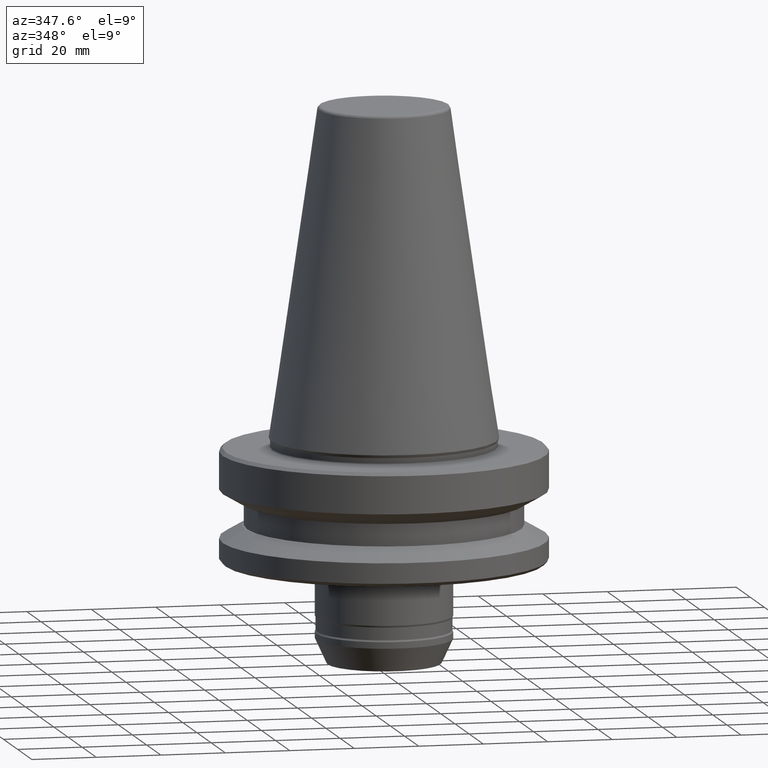
[diagram: clean part render]
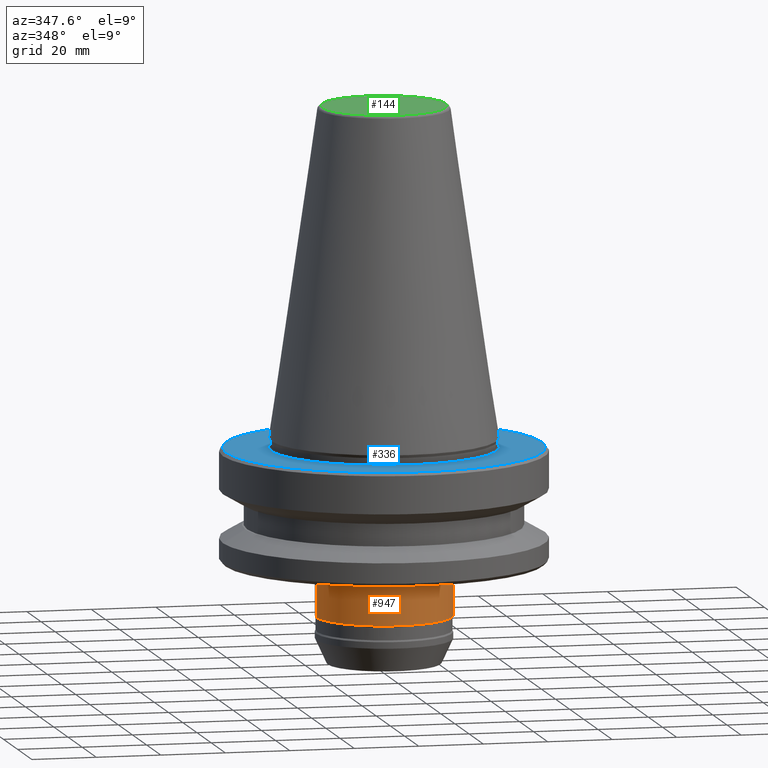
[diagram: same view with three faces highlighted in distinct colors, each labeled with its STEP entity id]
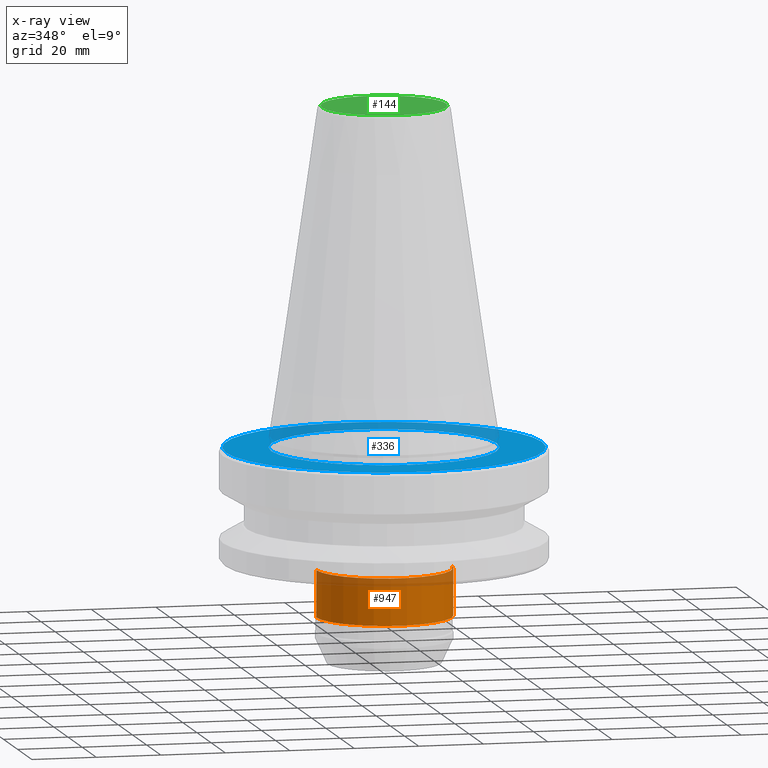
[diagram: x-ray of the same camera — body ghosted, the three highlighted faces saturated]
A machine part, auxiliary view with three faces highlighted in distinct colors.
The next image is the same camera in x-ray (body ghosted, the three faces saturated) — at least one of them is partly hidden behind the body in this view.
Their STEP definitions:

[orange] entity #947 — the highlighted cylindrical surface (partial cylindrical patch) has radius 21 mm, axis along (-0, -0, 1).
#28 = CARTESIAN_POINT ( 'NONE',  ( -20.99999999998014700, 2.571758278207010400E-015, -54.50422577826108700 ) ) ;
#149 = DIRECTION ( 'NONE',  ( 1.000000000000000000, 0.0000000000000000000, 0.0000000000000000000 ) ) ;
#162 = VECTOR ( 'NONE', #245, 1000.000000000000000 ) ;
#166 = LINE ( 'NONE', #641, #162 ) ;
#176 = CARTESIAN_POINT ( 'NONE',  ( 0.0000000000000000000, 0.0000000000000000000, -54.50422577826108700 ) ) ;
#209 = CYLINDRICAL_SURFACE ( 'NONE', #529, 20.99999999998025800 ) ;
#222 = FACE_OUTER_BOUND ( 'NONE', #663, .T. ) ;
#245 = DIRECTION ( 'NONE',  ( -0.0000000000000000000, -0.0000000000000000000, 1.000000000000000000 ) ) ;
#260 = CIRCLE ( 'NONE', #360, 20.99999999998014700 ) ;
#263 = DIRECTION ( 'NONE',  ( 1.000000000000000000, 0.0000000000000000000, 0.0000000000000000000 ) ) ;
#282 = CARTESIAN_POINT ( 'NONE',  ( -20.99999999998036800, 2.571758278207038000E-015, -40.00000000000181200 ) ) ;
#285 = VECTOR ( 'NONE', #1049, 1000.000000000000000 ) ;
#289 = CIRCLE ( 'NONE', #1170, 20.99999999998036800 ) ;
#291 = LINE ( 'NONE', #373, #285 ) ;
#346 = DIRECTION ( 'NONE',  ( -0.0000000000000000000, -0.0000000000000000000, 1.000000000000000000 ) ) ;
#360 = AXIS2_PLACEMENT_3D ( 'NONE', #176, #854, #263 ) ;
#373 = CARTESIAN_POINT ( 'NONE',  ( 20.99999999998025800, 0.0000000000000000000, 132.3443118565871000 ) ) ;
#529 = AXIS2_PLACEMENT_3D ( 'NONE', #721, #1161, #149 ) ;
#582 = CARTESIAN_POINT ( 'NONE',  ( 20.99999999998014700, 0.0000000000000000000, -54.50422577826108700 ) ) ;
#641 = CARTESIAN_POINT ( 'NONE',  ( -20.99999999998025800, 2.571758278207024200E-015, 132.3443118565871000 ) ) ;
#658 = CARTESIAN_POINT ( 'NONE',  ( 20.99999999998036800, 0.0000000000000000000, -40.00000000000181200 ) ) ;
#659 = VERTEX_POINT ( 'NONE', #282 ) ;
#663 = EDGE_LOOP ( 'NONE', ( #809, #814, #815, #823 ) ) ;
#721 = CARTESIAN_POINT ( 'NONE',  ( 0.0000000000000000000, 0.0000000000000000000, 132.3443118565871000 ) ) ;
#760 = EDGE_CURVE ( 'NONE', #776, #807, #291, .T. ) ;
#761 = EDGE_CURVE ( 'NONE', #659, #807, #289, .T. ) ;
#776 = VERTEX_POINT ( 'NONE', #582 ) ;
#807 = VERTEX_POINT ( 'NONE', #658 ) ;
#809 = ORIENTED_EDGE ( 'NONE', *, *, #1101, .F. ) ;
#814 = ORIENTED_EDGE ( 'NONE', *, *, #835, .T. ) ;
#815 = ORIENTED_EDGE ( 'NONE', *, *, #760, .T. ) ;
#823 = ORIENTED_EDGE ( 'NONE', *, *, #761, .F. ) ;
#835 = EDGE_CURVE ( 'NONE', #876, #776, #260, .T. ) ;
#854 = DIRECTION ( 'NONE',  ( -0.0000000000000000000, -0.0000000000000000000, 1.000000000000000000 ) ) ;
#876 = VERTEX_POINT ( 'NONE', #28 ) ;
#947 = ADVANCED_FACE ( 'NONE', ( #222 ), #209, .T. ) ;
#1027 = DIRECTION ( 'NONE',  ( 1.000000000000000000, 0.0000000000000000000, 0.0000000000000000000 ) ) ;
#1049 = DIRECTION ( 'NONE',  ( -0.0000000000000000000, -0.0000000000000000000, 1.000000000000000000 ) ) ;
#1101 = EDGE_CURVE ( 'NONE', #876, #659, #166, .T. ) ;
#1161 = DIRECTION ( 'NONE',  ( -0.0000000000000000000, -0.0000000000000000000, 1.000000000000000000 ) ) ;
#1170 = AXIS2_PLACEMENT_3D ( 'NONE', #1199, #346, #1027 ) ;
#1199 = CARTESIAN_POINT ( 'NONE',  ( 0.0000000000000000000, 0.0000000000000000000, -40.00000000000181200 ) ) ;

[blue] entity #336 — the highlighted planar face has unit normal (0, 0, -1).
#4 = DIRECTION ( 'NONE',  ( -0.0000000000000000000, -0.0000000000000000000, 1.000000000000000000 ) ) ;
#63 = AXIS2_PLACEMENT_3D ( 'NONE', #667, #98, #762 ) ;
#98 = DIRECTION ( 'NONE',  ( -0.0000000000000000000, -0.0000000000000000000, 1.000000000000000000 ) ) ;
#118 = DIRECTION ( 'NONE',  ( -1.000000000000000000, 0.0000000000000000000, -0.0000000000000000000 ) ) ;
#228 = DIRECTION ( 'NONE',  ( -0.0000000000000000000, -0.0000000000000000000, 1.000000000000000000 ) ) ;
#230 = CIRCLE ( 'NONE', #612, 48.99999999999970900 ) ;
#265 = CARTESIAN_POINT ( 'NONE',  ( 0.0000000000000000000, 0.0000000000000000000, -3.000000000001223900 ) ) ;
#302 = CIRCLE ( 'NONE', #63, 48.99999999999970900 ) ;
#316 = CIRCLE ( 'NONE', #1190, 34.99999999999970200 ) ;
#321 = CIRCLE ( 'NONE', #1106, 34.99999999999970200 ) ;
#336 = ADVANCED_FACE ( 'NONE', ( #411, #419 ), #1142, .F. ) ;
#365 = DIRECTION ( 'NONE',  ( 1.000000000000000000, 0.0000000000000000000, 0.0000000000000000000 ) ) ;
#411 = FACE_BOUND ( 'NONE', #978, .T. ) ;
#419 = FACE_OUTER_BOUND ( 'NONE', #1072, .T. ) ;
#586 = CARTESIAN_POINT ( 'NONE',  ( 0.0000000000000000000, 0.0000000000000000000, -3.000000000001223900 ) ) ;
#593 = CARTESIAN_POINT ( 'NONE',  ( 0.0000000000000000000, 48.99999999999970900, -3.000000000001223900 ) ) ;
#612 = AXIS2_PLACEMENT_3D ( 'NONE', #816, #228, #911 ) ;
#628 = CARTESIAN_POINT ( 'NONE',  ( 34.99999999999992200, 0.0000000000000000000, -3.000000000001446000 ) ) ;
#642 = VERTEX_POINT ( 'NONE', #668 ) ;
#667 = CARTESIAN_POINT ( 'NONE',  ( 0.0000000000000000000, 0.0000000000000000000, -3.000000000001223900 ) ) ;
#668 = CARTESIAN_POINT ( 'NONE',  ( -48.99999999999970900, 0.0000000000000000000, -3.000000000001223900 ) ) ;
#672 = EDGE_CURVE ( 'NONE', #1124, #969, #316, .T. ) ;
#680 = DIRECTION ( 'NONE',  ( 1.000000000000000000, 0.0000000000000000000, 0.0000000000000000000 ) ) ;
#690 = DIRECTION ( 'NONE',  ( 0.0000000000000000000, 0.0000000000000000000, -1.000000000000000000 ) ) ;
#699 = EDGE_CURVE ( 'NONE', #969, #1124, #321, .T. ) ;
#742 = EDGE_CURVE ( 'NONE', #642, #865, #302, .T. ) ;
#762 = DIRECTION ( 'NONE',  ( 1.000000000000000000, 0.0000000000000000000, 0.0000000000000000000 ) ) ;
#816 = CARTESIAN_POINT ( 'NONE',  ( 0.0000000000000000000, 0.0000000000000000000, -3.000000000001223900 ) ) ;
#865 = VERTEX_POINT ( 'NONE', #945 ) ;
#911 = DIRECTION ( 'NONE',  ( 1.000000000000000000, 0.0000000000000000000, 0.0000000000000000000 ) ) ;
#914 = EDGE_CURVE ( 'NONE', #865, #642, #230, .T. ) ;
#931 = CARTESIAN_POINT ( 'NONE',  ( -34.99999999999992200, 4.286263797015727000E-015, -3.000000000001446000 ) ) ;
#945 = CARTESIAN_POINT ( 'NONE',  ( 48.99999999999970900, 6.062001655779369300E-015, -3.000000000001223900 ) ) ;
#954 = DIRECTION ( 'NONE',  ( -0.0000000000000000000, -0.0000000000000000000, 1.000000000000000000 ) ) ;
#969 = VERTEX_POINT ( 'NONE', #628 ) ;
#978 = EDGE_LOOP ( 'NONE', ( #1130, #1188 ) ) ;
#1006 = AXIS2_PLACEMENT_3D ( 'NONE', #593, #690, #118 ) ;
#1050 = ORIENTED_EDGE ( 'NONE', *, *, #914, .T. ) ;
#1072 = EDGE_LOOP ( 'NONE', ( #1200, #1050 ) ) ;
#1106 = AXIS2_PLACEMENT_3D ( 'NONE', #265, #954, #365 ) ;
#1124 = VERTEX_POINT ( 'NONE', #931 ) ;
#1130 = ORIENTED_EDGE ( 'NONE', *, *, #699, .F. ) ;
#1142 = PLANE ( 'NONE',  #1006 ) ;
#1188 = ORIENTED_EDGE ( 'NONE', *, *, #672, .F. ) ;
#1190 = AXIS2_PLACEMENT_3D ( 'NONE', #586, #4, #680 ) ;
#1200 = ORIENTED_EDGE ( 'NONE', *, *, #742, .T. ) ;

[green] entity #144 — the highlighted planar face has unit normal (0, 0, -1).
#1 = AXIS2_PLACEMENT_3D ( 'NONE', #676, #103, #769 ) ;
#79 = PLANE ( 'NONE',  #482 ) ;
#103 = DIRECTION ( 'NONE',  ( -0.0000000000000000000, -0.0000000000000000000, 1.000000000000000000 ) ) ;
#144 = ADVANCED_FACE ( 'NONE', ( #487 ), #79, .F. ) ;
#219 = VERTEX_POINT ( 'NONE', #1070 ) ;
#256 = DIRECTION ( 'NONE',  ( -1.000000000000000000, 0.0000000000000000000, -0.0000000000000000000 ) ) ;
#322 = CIRCLE ( 'NONE', #1, 19.21428366486988200 ) ;
#355 = CIRCLE ( 'NONE', #972, 19.21428366486988200 ) ;
#482 = AXIS2_PLACEMENT_3D ( 'NONE', #559, #847, #256 ) ;
#487 = FACE_OUTER_BOUND ( 'NONE', #1104, .T. ) ;
#537 = CARTESIAN_POINT ( 'NONE',  ( -19.21428366486988200, 2.413662506824936800E-015, 101.7999999999988700 ) ) ;
#559 = CARTESIAN_POINT ( 'NONE',  ( 0.0000000000000000000, 19.21428366486988200, 101.7999999999989500 ) ) ;
#581 = DIRECTION ( 'NONE',  ( -0.0000000000000000000, -0.0000000000000000000, 1.000000000000000000 ) ) ;
#602 = ORIENTED_EDGE ( 'NONE', *, *, #626, .T. ) ;
#626 = EDGE_CURVE ( 'NONE', #219, #979, #355, .T. ) ;
#640 = ORIENTED_EDGE ( 'NONE', *, *, #655, .T. ) ;
#655 = EDGE_CURVE ( 'NONE', #979, #219, #322, .T. ) ;
#676 = CARTESIAN_POINT ( 'NONE',  ( 0.0000000000000000000, 0.0000000000000000000, 101.7999999999988700 ) ) ;
#769 = DIRECTION ( 'NONE',  ( 1.000000000000000000, 0.0000000000000000000, 0.0000000000000000000 ) ) ;
#847 = DIRECTION ( 'NONE',  ( 0.0000000000000000000, 0.0000000000000000000, -1.000000000000000000 ) ) ;
#972 = AXIS2_PLACEMENT_3D ( 'NONE', #1127, #581, #1198 ) ;
#979 = VERTEX_POINT ( 'NONE', #537 ) ;
#1070 = CARTESIAN_POINT ( 'NONE',  ( 19.21428366486988200, 0.0000000000000000000, 101.7999999999988700 ) ) ;
#1104 = EDGE_LOOP ( 'NONE', ( #602, #640 ) ) ;
#1127 = CARTESIAN_POINT ( 'NONE',  ( 0.0000000000000000000, 0.0000000000000000000, 101.7999999999988700 ) ) ;
#1198 = DIRECTION ( 'NONE',  ( 1.000000000000000000, 0.0000000000000000000, 0.0000000000000000000 ) ) ;